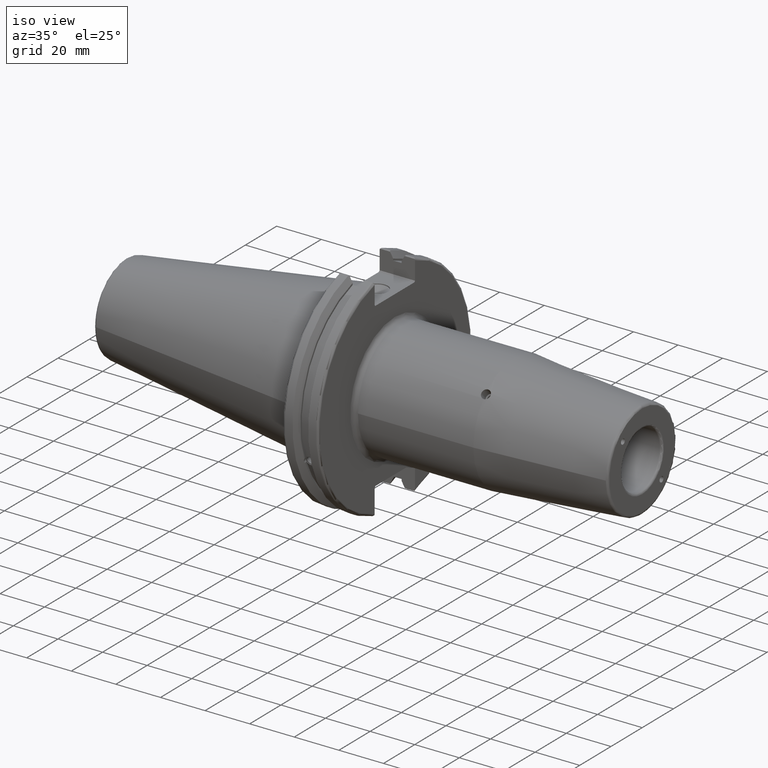
[diagram: clean part render]
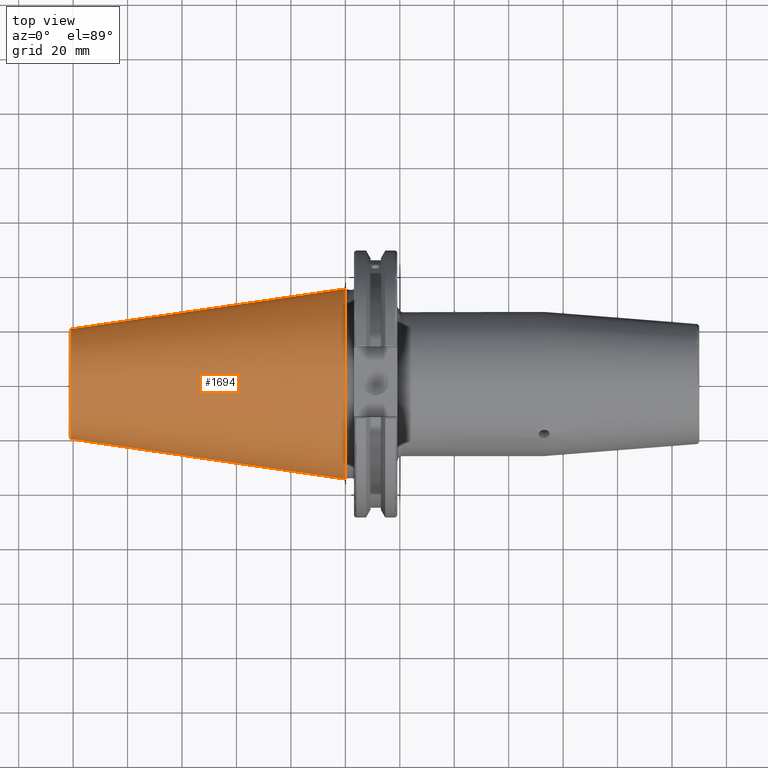
[diagram: tour spotlight — one face highlighted and labeled with its STEP entity id]
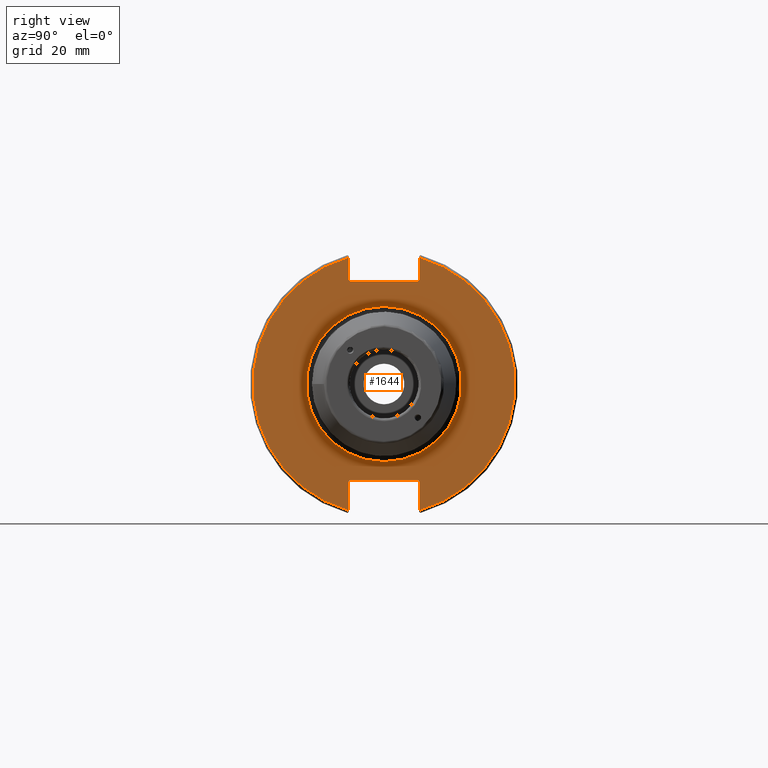
[diagram: tour spotlight — one face highlighted and labeled with its STEP entity id]
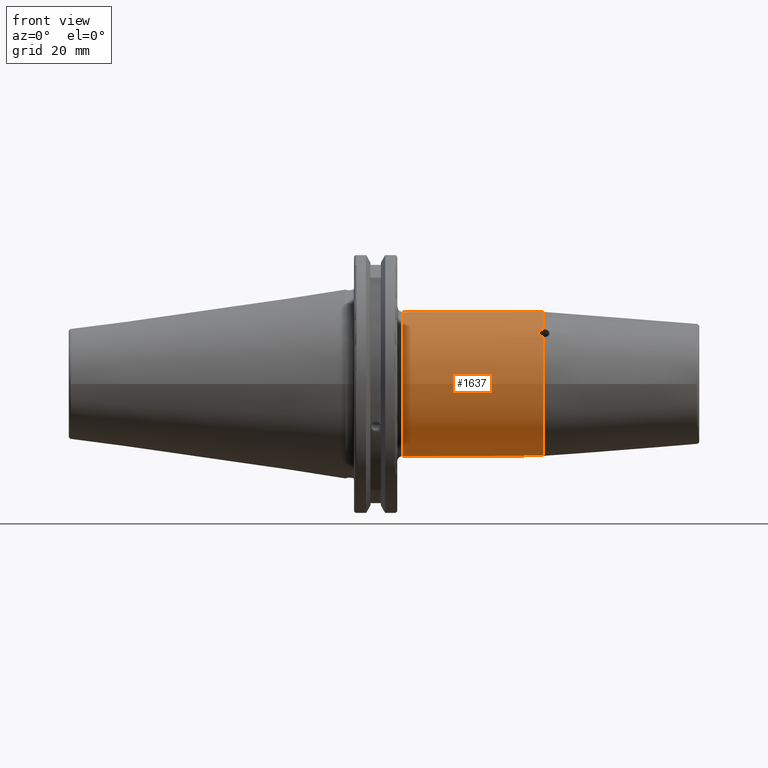
[diagram: tour spotlight — one face highlighted and labeled with its STEP entity id]
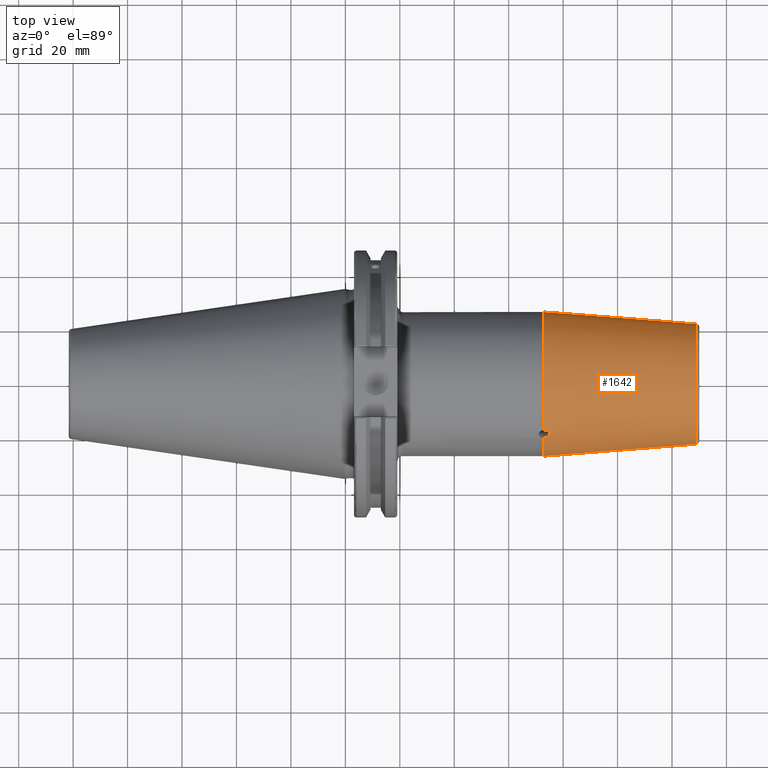
[diagram: tour spotlight — one face highlighted and labeled with its STEP entity id]
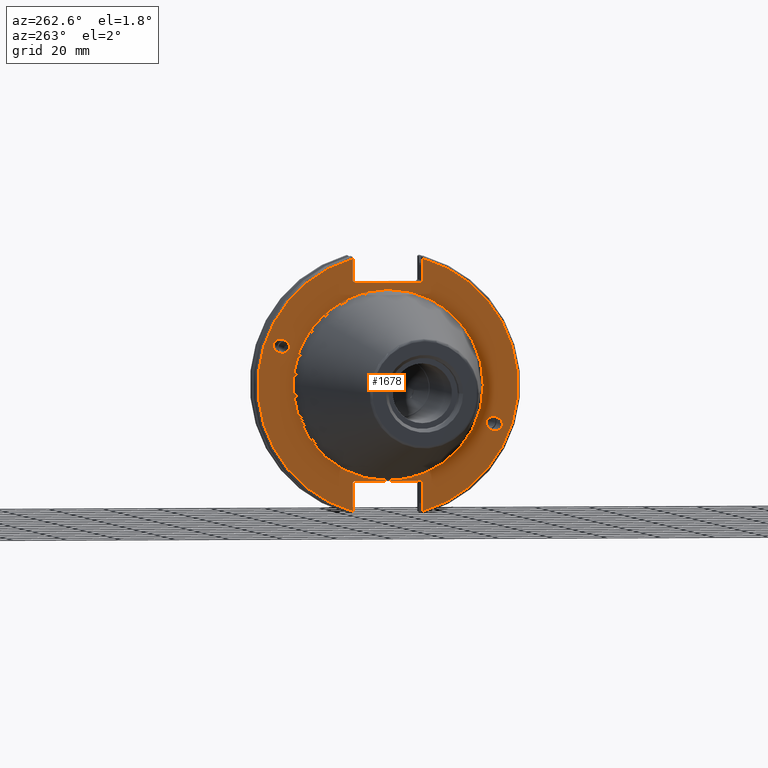
[diagram: tour spotlight — one face highlighted and labeled with its STEP entity id]
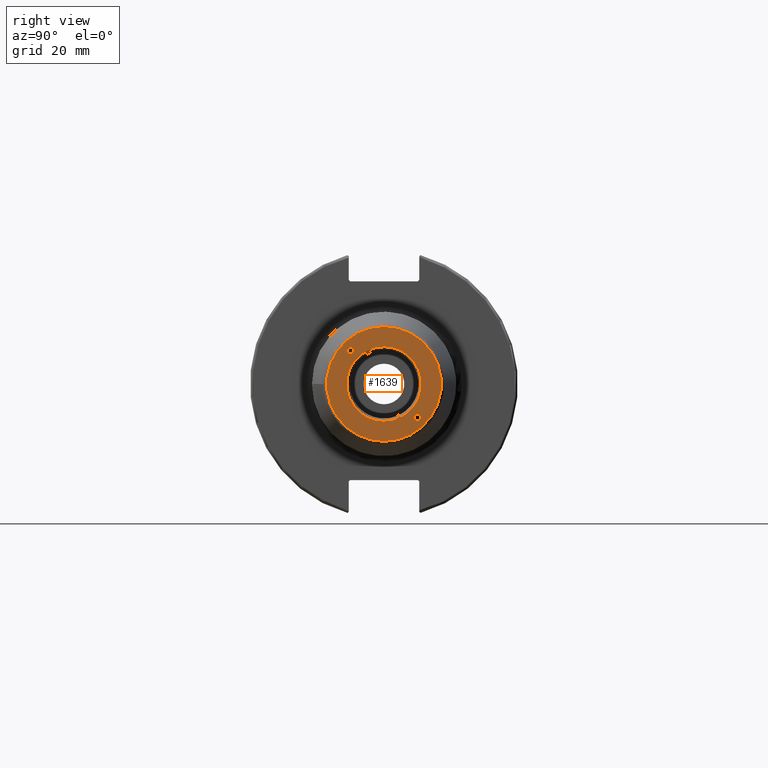
[diagram: tour spotlight — one face highlighted and labeled with its STEP entity id]
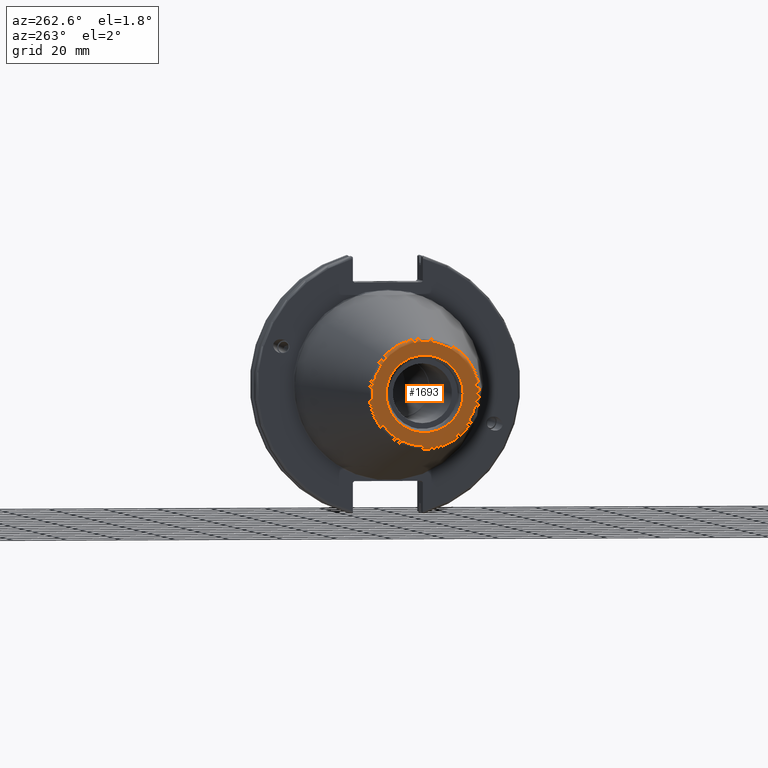
[diagram: tour spotlight — one face highlighted and labeled with its STEP entity id]
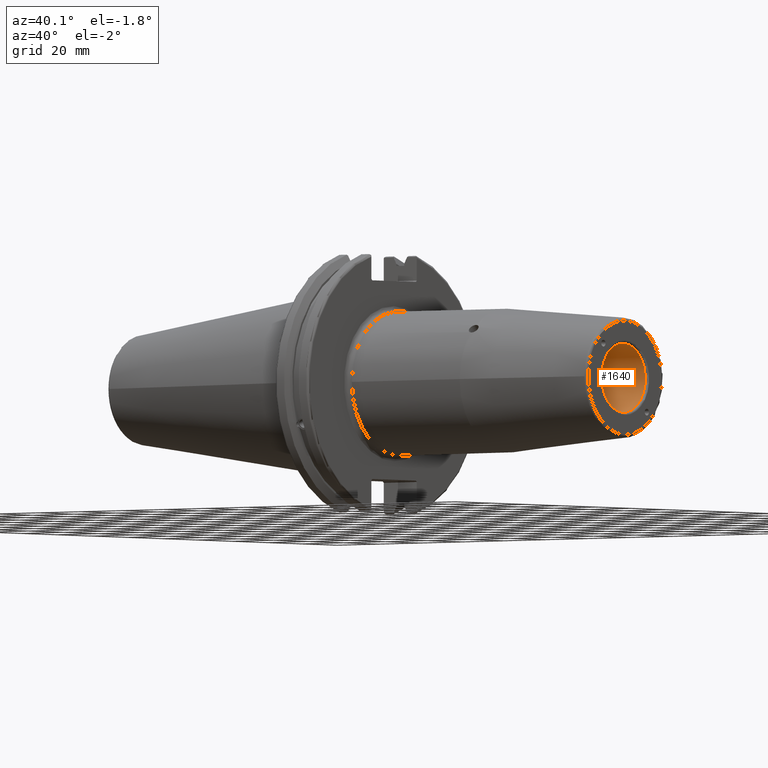
[diagram: tour spotlight — one face highlighted and labeled with its STEP entity id]
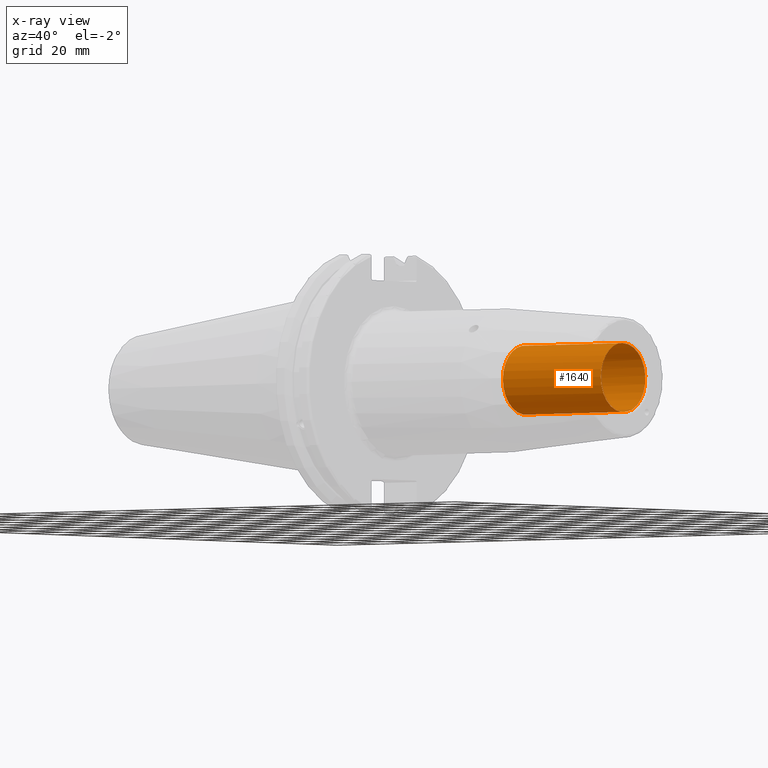
[diagram: x-ray of the same camera — body ghosted, this tour face saturated]
A machine part: a face-by-face anatomy tour. The part has 93 B-rep faces; the first image is the clean iso view, then the 8 largest visible faces are spotlighted one at a time (largest first), each with its STEP entity span.

Face 1 — top view, entity #1694. In plain terms, the highlighted conical surface has half-angle 8.297 deg.
Definition (entity closure, byte-faithful):
#110=CONICAL_SURFACE('',#1882,27.5166666666666,0.14481249823894);
#179=CIRCLE('',#1876,20.233121911427);
#180=CIRCLE('',#1877,20.233121911427);
#184=CIRCLE('',#1883,34.925);
#260=FACE_OUTER_BOUND('',#375,.T.);
#375=EDGE_LOOP('',(#1466,#1467,#1468,#1469,#1470));
#540=LINE('',#3496,#641);
#641=VECTOR('',#2282,27.5166666666666);
#821=VERTEX_POINT('',#3483);
#822=VERTEX_POINT('',#3484);
#825=VERTEX_POINT('',#3494);
#1051=EDGE_CURVE('',#821,#822,#179,.T.);
#1052=EDGE_CURVE('',#822,#821,#180,.T.);
#1056=EDGE_CURVE('',#825,#825,#184,.T.);
#1057=EDGE_CURVE('',#825,#822,#540,.T.);
#1466=ORIENTED_EDGE('',*,*,#1056,.F.);
#1467=ORIENTED_EDGE('',*,*,#1057,.T.);
#1468=ORIENTED_EDGE('',*,*,#1051,.F.);
#1469=ORIENTED_EDGE('',*,*,#1052,.F.);
#1470=ORIENTED_EDGE('',*,*,#1057,.F.);
#1694=ADVANCED_FACE('',(#260),#110,.T.);
#1876=AXIS2_PLACEMENT_3D('',#3485,#2266,#2267);
#1877=AXIS2_PLACEMENT_3D('',#3486,#2268,#2269);
#1882=AXIS2_PLACEMENT_3D('',#3493,#2278,#2279);
#1883=AXIS2_PLACEMENT_3D('',#3495,#2280,#2281);
#2266=DIRECTION('center_axis',(-1.,0.,0.));
#2267=DIRECTION('ref_axis',(0.,-1.,3.06161699786838E-17));
#2268=DIRECTION('center_axis',(-1.,0.,0.));
#2269=DIRECTION('ref_axis',(0.,-1.,3.06161699786838E-17));
#2278=DIRECTION('center_axis',(1.,0.,0.));
#2279=DIRECTION('ref_axis',(0.,1.,0.));
#2280=DIRECTION('center_axis',(1.,0.,0.));
#2281=DIRECTION('ref_axis',(0.,0.,-1.));
#2282=DIRECTION('',(-0.989532981063281,0.144306893071729,1.76724974695192E-17));
#3483=CARTESIAN_POINT('',(-100.744306893072,-2.47784279855872E-15,20.233121911427));
#3484=CARTESIAN_POINT('',(-100.744306893072,-20.233121911427,-2.47784279855872E-15));
#3485=CARTESIAN_POINT('Origin',(-100.744306893072,0.,-3.09730349819841E-15));
#3486=CARTESIAN_POINT('Origin',(-100.744306893072,0.,-3.09730349819841E-15));
#3493=CARTESIAN_POINT('Origin',(-50.8,0.,0.));
#3494=CARTESIAN_POINT('',(-8.88178419700125E-15,-34.925,-4.27707894602213E-15));
#3495=CARTESIAN_POINT('Origin',(0.,0.,0.));
#3496=CARTESIAN_POINT('',(-50.8,-27.5166666666666,-3.3698197756538E-15));

Face 2 — right view, entity #1644. In plain terms, the highlighted planar face has unit normal (1, 0, 0).
Definition (entity closure, byte-faithful):
#34=FACE_BOUND('',#307,.T.);
#56=PLANE('',#1780);
#133=CIRCLE('',#1779,28.5);
#134=CIRCLE('',#1781,48.2125);
#135=CIRCLE('',#1782,48.2125);
#210=FACE_OUTER_BOUND('',#306,.T.);
#306=EDGE_LOOP('',(#1178,#1179,#1180,#1181,#1182,#1183,#1184,#1185,#1186,
#1187,#1188,#1189));
#307=EDGE_LOOP('',(#1190));
#471=LINE('',#2679,#572);
#472=LINE('',#2681,#573);
#473=LINE('',#2683,#574);
#474=LINE('',#2685,#575);
#475=LINE('',#2687,#576);
#476=LINE('',#2691,#577);
#477=LINE('',#2693,#578);
#478=LINE('',#2695,#579);
#479=LINE('',#2697,#580);
#480=LINE('',#2698,#581);
#572=VECTOR('',#2009,10.);
#573=VECTOR('',#2010,10.);
#574=VECTOR('',#2011,10.);
#575=VECTOR('',#2012,10.);
#576=VECTOR('',#2013,10.);
#577=VECTOR('',#2016,10.);
#578=VECTOR('',#2017,10.);
#579=VECTOR('',#2018,10.);
#580=VECTOR('',#2019,10.);
#581=VECTOR('',#2020,10.);
#696=VERTEX_POINT('',#2671);
#697=VERTEX_POINT('',#2675);
#698=VERTEX_POINT('',#2676);
#699=VERTEX_POINT('',#2678);
#700=VERTEX_POINT('',#2680);
#701=VERTEX_POINT('',#2682);
#702=VERTEX_POINT('',#2684);
#703=VERTEX_POINT('',#2686);
#704=VERTEX_POINT('',#2688);
#705=VERTEX_POINT('',#2690);
#706=VERTEX_POINT('',#2692);
#707=VERTEX_POINT('',#2694);
#708=VERTEX_POINT('',#2696);
#882=EDGE_CURVE('',#696,#696,#133,.T.);
#883=EDGE_CURVE('',#697,#698,#134,.T.);
#884=EDGE_CURVE('',#697,#699,#471,.T.);
#885=EDGE_CURVE('',#700,#699,#472,.T.);
#886=EDGE_CURVE('',#700,#701,#473,.T.);
#887=EDGE_CURVE('',#702,#701,#474,.T.);
#888=EDGE_CURVE('',#702,#703,#475,.T.);
#889=EDGE_CURVE('',#704,#703,#135,.T.);
#890=EDGE_CURVE('',#704,#705,#476,.T.);
#891=EDGE_CURVE('',#706,#705,#477,.T.);
#892=EDGE_CURVE('',#706,#707,#478,.T.);
#893=EDGE_CURVE('',#708,#707,#479,.T.);
#894=EDGE_CURVE('',#708,#698,#480,.T.);
#1178=ORIENTED_EDGE('',*,*,#883,.F.);
#1179=ORIENTED_EDGE('',*,*,#884,.T.);
#1180=ORIENTED_EDGE('',*,*,#885,.F.);
#1181=ORIENTED_EDGE('',*,*,#886,.T.);
#1182=ORIENTED_EDGE('',*,*,#887,.F.);
#1183=ORIENTED_EDGE('',*,*,#888,.T.);
#1184=ORIENTED_EDGE('',*,*,#889,.F.);
#1185=ORIENTED_EDGE('',*,*,#890,.T.);
#1186=ORIENTED_EDGE('',*,*,#891,.F.);
#1187=ORIENTED_EDGE('',*,*,#892,.T.);
#1188=ORIENTED_EDGE('',*,*,#893,.F.);
#1189=ORIENTED_EDGE('',*,*,#894,.T.);
#1190=ORIENTED_EDGE('',*,*,#882,.F.);
#1644=ADVANCED_FACE('',(#210,#34),#56,.T.);
#1779=AXIS2_PLACEMENT_3D('',#2673,#2003,#2004);
#1780=AXIS2_PLACEMENT_3D('',#2674,#2005,#2006);
#1781=AXIS2_PLACEMENT_3D('',#2677,#2007,#2008);
#1782=AXIS2_PLACEMENT_3D('',#2689,#2014,#2015);
#2003=DIRECTION('center_axis',(1.,0.,0.));
#2004=DIRECTION('ref_axis',(0.,-1.,-1.22464679914735E-16));
#2005=DIRECTION('center_axis',(1.,0.,0.));
#2006=DIRECTION('ref_axis',(0.,0.,-1.));
#2007=DIRECTION('center_axis',(-1.,0.,0.));
#2008=DIRECTION('ref_axis',(0.,1.,-6.12323399573677E-17));
#2009=DIRECTION('',(0.,0.,-1.));
#2010=DIRECTION('',(0.,0.707106781186549,0.707106781186546));
#2011=DIRECTION('',(0.,-1.,0.));
#2012=DIRECTION('',(0.,0.707106781186549,-0.707106781186546));
#2013=DIRECTION('',(0.,0.,1.));
#2014=DIRECTION('center_axis',(-1.,0.,0.));
#2015=DIRECTION('ref_axis',(0.,-1.,1.60812264967664E-16));
#2016=DIRECTION('',(0.,0.,1.));
#2017=DIRECTION('',(0.,-0.707106781186549,-0.707106781186546));
#2018=DIRECTION('',(0.,1.,0.));
#2019=DIRECTION('',(0.,-0.707106781186549,0.707106781186546));
#2020=DIRECTION('',(0.,0.,-1.));
#2671=CARTESIAN_POINT('',(19.05,-3.49024337756996E-15,-28.5));
#2673=CARTESIAN_POINT('Origin',(19.05,0.,0.));
#2674=CARTESIAN_POINT('Origin',(19.05,0.,0.));
#2675=CARTESIAN_POINT('',(19.05,12.95,46.4407434937254));
#2676=CARTESIAN_POINT('',(19.05,12.95,-46.4407434937254));
#2677=CARTESIAN_POINT('Origin',(19.05,0.,0.));
#2678=CARTESIAN_POINT('',(19.05,12.95,38.219));
#2679=CARTESIAN_POINT('',(19.05,12.95,18.8595));
#2680=CARTESIAN_POINT('',(19.05,12.45,37.719));
#2681=CARTESIAN_POINT('',(19.05,0.0327499999999836,25.30175));
#2682=CARTESIAN_POINT('',(19.05,-12.45,37.719));
#2683=CARTESIAN_POINT('',(19.05,0.,37.719));
#2684=CARTESIAN_POINT('',(19.05,-12.95,38.219));
#2685=CARTESIAN_POINT('',(19.05,-0.0327499999999817,25.30175));
#2686=CARTESIAN_POINT('',(19.05,-12.95,46.4407434937254));
#2687=CARTESIAN_POINT('',(19.05,-12.95,18.8595));
#2688=CARTESIAN_POINT('',(19.05,-12.95,-46.4407434937254));
#2689=CARTESIAN_POINT('Origin',(19.05,0.,0.));
#2690=CARTESIAN_POINT('',(19.05,-12.95,-35.806));
#2691=CARTESIAN_POINT('',(19.05,-12.95,-17.653));
#2692=CARTESIAN_POINT('',(19.05,-12.45,-35.306));
#2693=CARTESIAN_POINT('',(19.05,-0.635999999999989,-23.492));
#2694=CARTESIAN_POINT('',(19.05,12.45,-35.306));
#2695=CARTESIAN_POINT('',(19.05,-3.33066907387547E-15,-35.306));
#2696=CARTESIAN_POINT('',(19.05,12.95,-35.806));
#2697=CARTESIAN_POINT('',(19.05,0.635999999999982,-23.492));
#2698=CARTESIAN_POINT('',(19.05,12.95,-17.653));

Face 3 — front view, entity #1637. In plain terms, the highlighted cylindrical surface (bore or boss wall) has radius 26.5 mm, axis along (1, 0, 0).
Definition (entity closure, byte-faithful):
#119=CIRCLE('',#1759,26.5);
#120=CIRCLE('',#1760,26.5);
#121=CIRCLE('',#1761,26.5);
#122=CIRCLE('',#1762,26.5);
#203=FACE_OUTER_BOUND('',#296,.T.);
#296=EDGE_LOOP('',(#1139,#1140,#1141,#1142,#1143,#1144,#1145));
#419=B_SPLINE_CURVE_WITH_KNOTS('',3,(#2603,#2604,#2605,#2606,#2607,#2608,
#2609,#2610,#2611,#2612,#2613,#2614,#2615,#2616,#2617,#2618,#2619,#2620),
 .UNSPECIFIED.,.F.,.F.,(4,2,2,2,2,2,2,2,4),(0.620510854365993,0.678312840399009,
0.753680970618964,0.829049017943773,0.904417065268582,0.979785112593391,
1.0551531599182,1.13052129013816,1.18832327617117),.UNSPECIFIED.);
#468=LINE('',#2642,#569);
#569=VECTOR('',#1962,26.5);
#682=VERTEX_POINT('',#2587);
#684=VERTEX_POINT('',#2602);
#686=VERTEX_POINT('',#2639);
#687=VERTEX_POINT('',#2641);
#688=VERTEX_POINT('',#2643);
#860=EDGE_CURVE('',#684,#682,#419,.T.);
#865=EDGE_CURVE('',#686,#682,#119,.T.);
#866=EDGE_CURVE('',#686,#687,#468,.T.);
#867=EDGE_CURVE('',#688,#687,#120,.T.);
#868=EDGE_CURVE('',#687,#688,#121,.T.);
#869=EDGE_CURVE('',#684,#686,#122,.T.);
#1139=ORIENTED_EDGE('',*,*,#860,.T.);
#1140=ORIENTED_EDGE('',*,*,#865,.F.);
#1141=ORIENTED_EDGE('',*,*,#866,.T.);
#1142=ORIENTED_EDGE('',*,*,#867,.F.);
#1143=ORIENTED_EDGE('',*,*,#868,.F.);
#1144=ORIENTED_EDGE('',*,*,#866,.F.);
#1145=ORIENTED_EDGE('',*,*,#869,.F.);
#1603=CYLINDRICAL_SURFACE('',#1758,26.5);
#1637=ADVANCED_FACE('',(#203),#1603,.T.);
#1758=AXIS2_PLACEMENT_3D('',#2638,#1958,#1959);
#1759=AXIS2_PLACEMENT_3D('',#2640,#1960,#1961);
#1760=AXIS2_PLACEMENT_3D('',#2644,#1963,#1964);
#1761=AXIS2_PLACEMENT_3D('',#2645,#1965,#1966);
#1762=AXIS2_PLACEMENT_3D('',#2646,#1967,#1968);
#1958=DIRECTION('center_axis',(1.,0.,0.));
#1959=DIRECTION('ref_axis',(0.,1.,0.));
#1960=DIRECTION('center_axis',(1.,0.,0.));
#1961=DIRECTION('ref_axis',(0.,0.,-1.));
#1962=DIRECTION('',(-1.,0.,0.));
#1963=DIRECTION('center_axis',(-1.,0.,0.));
#1964=DIRECTION('ref_axis',(0.,-1.,-1.22464679914735E-16));
#1965=DIRECTION('center_axis',(-1.,0.,0.));
#1966=DIRECTION('ref_axis',(0.,-1.,-1.22464679914735E-16));
#1967=DIRECTION('center_axis',(1.,0.,0.));
#1968=DIRECTION('ref_axis',(0.,0.,-1.));
#2587=CARTESIAN_POINT('',(72.8220786872138,-17.276704082379,20.0939168916841));
#2602=CARTESIAN_POINT('',(72.8220786872138,-20.0939168916841,17.276704082379));
#2603=CARTESIAN_POINT('Ctrl Pts',(72.8220786872138,-20.0939168916841,17.276704082379));
#2604=CARTESIAN_POINT('Ctrl Pts',(72.6249962546233,-20.0824084423519,17.2900891483807));
#2605=CARTESIAN_POINT('Ctrl Pts',(72.4234450740899,-20.0507328415156,17.3269809865139));
#2606=CARTESIAN_POINT('Ctrl Pts',(71.9881353838427,-19.932121053961,17.4634194575635));
#2607=CARTESIAN_POINT('Ctrl Pts',(71.7633041163207,-19.8304430157723,17.5793951070025));
#2608=CARTESIAN_POINT('Ctrl Pts',(71.4082689541795,-19.5928119172379,17.8438595498876));
#2609=CARTESIAN_POINT('Ctrl Pts',(71.2543644049249,-19.4409720544505,18.0099792374124));
#2610=CARTESIAN_POINT('Ctrl Pts',(71.0502272876838,-19.1026276303626,18.3684611268594));
#2611=CARTESIAN_POINT('Ctrl Pts',(71.,-18.915973892604,18.560685510283));
#2612=CARTESIAN_POINT('Ctrl Pts',(71.,-18.560685510283,18.915973892604));
#2613=CARTESIAN_POINT('Ctrl Pts',(71.0502272876838,-18.3684611268594,19.1026276303626));
#2614=CARTESIAN_POINT('Ctrl Pts',(71.2543644049249,-18.0099792374124,19.4409720544505));
#2615=CARTESIAN_POINT('Ctrl Pts',(71.4082689541795,-17.8438595498876,19.5928119172379));
#2616=CARTESIAN_POINT('Ctrl Pts',(71.7633041163207,-17.5793951070025,19.8304430157723));
#2617=CARTESIAN_POINT('Ctrl Pts',(71.9881353838427,-17.4634194575635,19.932121053961));
#2618=CARTESIAN_POINT('Ctrl Pts',(72.4234450740899,-17.3269809865139,20.0507328415156));
#2619=CARTESIAN_POINT('Ctrl Pts',(72.6249962546233,-17.2900891483807,20.0824084423519));
#2620=CARTESIAN_POINT('Ctrl Pts',(72.8220786872138,-17.276704082379,20.0939168916841));
#2638=CARTESIAN_POINT('Origin',(45.9360393436069,0.,0.));
#2639=CARTESIAN_POINT('',(72.8220786872138,-26.5,-3.24531401774049E-15));
#2640=CARTESIAN_POINT('Origin',(72.8220786872138,0.,0.));
#2641=CARTESIAN_POINT('',(21.05,-26.5,-3.24531401774049E-15));
#2642=CARTESIAN_POINT('',(45.9360393436069,-26.5,-3.24531401774049E-15));
#2643=CARTESIAN_POINT('',(21.05,-3.24531401774049E-15,-26.5));
#2644=CARTESIAN_POINT('Origin',(21.05,0.,0.));
#2645=CARTESIAN_POINT('Origin',(21.05,0.,0.));
#2646=CARTESIAN_POINT('Origin',(72.8220786872138,0.,0.));

Face 4 — top view, entity #1642. In plain terms, the highlighted conical surface has half-angle 4.5 deg.
Definition (entity closure, byte-faithful):
#103=CONICAL_SURFACE('',#1776,24.25,0.0785398163397448);
#119=CIRCLE('',#1759,26.5);
#122=CIRCLE('',#1762,26.5);
#130=CIRCLE('',#1774,22.0725268420749);
#131=CIRCLE('',#1775,22.0725268420749);
#208=FACE_OUTER_BOUND('',#304,.T.);
#304=EDGE_LOOP('',(#1165,#1166,#1167,#1168,#1169,#1170,#1171,#1172));
#418=B_SPLINE_CURVE_WITH_KNOTS('',3,(#2589,#2590,#2591,#2592,#2593,#2594,
#2595,#2596,#2597,#2598,#2599,#2600,#2601),.UNSPECIFIED.,.F.,.F.,(4,3,2,
2,2,4),(-0.0187866150525106,0.,0.0751395532383938,0.150279106476788,0.2253197963992,
0.300360486321612),.UNSPECIFIED.);
#420=B_SPLINE_CURVE_WITH_KNOTS('',3,(#2621,#2622,#2623,#2624,#2625,#2626,
#2627,#2628,#2629,#2630,#2631,#2632),.UNSPECIFIED.,.F.,.F.,(4,2,2,2,2,4),
(0.300360486321612,0.375401176244025,0.450441866166437,0.52558141940483,
0.600720972643224,0.619507587749332),.UNSPECIFIED.);
#470=LINE('',#2669,#571);
#571=VECTOR('',#1998,24.25);
#682=VERTEX_POINT('',#2587);
#683=VERTEX_POINT('',#2588);
#684=VERTEX_POINT('',#2602);
#686=VERTEX_POINT('',#2639);
#694=VERTEX_POINT('',#2663);
#695=VERTEX_POINT('',#2665);
#859=EDGE_CURVE('',#682,#683,#418,.T.);
#861=EDGE_CURVE('',#683,#684,#420,.T.);
#865=EDGE_CURVE('',#686,#682,#119,.T.);
#869=EDGE_CURVE('',#684,#686,#122,.T.);
#878=EDGE_CURVE('',#694,#695,#130,.T.);
#879=EDGE_CURVE('',#695,#694,#131,.T.);
#880=EDGE_CURVE('',#695,#686,#470,.T.);
#1165=ORIENTED_EDGE('',*,*,#879,.F.);
#1166=ORIENTED_EDGE('',*,*,#880,.T.);
#1167=ORIENTED_EDGE('',*,*,#865,.T.);
#1168=ORIENTED_EDGE('',*,*,#859,.T.);
#1169=ORIENTED_EDGE('',*,*,#861,.T.);
#1170=ORIENTED_EDGE('',*,*,#869,.T.);
#1171=ORIENTED_EDGE('',*,*,#880,.F.);
#1172=ORIENTED_EDGE('',*,*,#878,.F.);
#1642=ADVANCED_FACE('',(#208),#103,.T.);
#1759=AXIS2_PLACEMENT_3D('',#2640,#1960,#1961);
#1762=AXIS2_PLACEMENT_3D('',#2646,#1967,#1968);
#1774=AXIS2_PLACEMENT_3D('',#2666,#1992,#1993);
#1775=AXIS2_PLACEMENT_3D('',#2667,#1994,#1995);
#1776=AXIS2_PLACEMENT_3D('',#2668,#1996,#1997);
#1960=DIRECTION('center_axis',(1.,0.,0.));
#1961=DIRECTION('ref_axis',(0.,0.,-1.));
#1967=DIRECTION('center_axis',(1.,0.,0.));
#1968=DIRECTION('ref_axis',(0.,0.,-1.));
#1992=DIRECTION('center_axis',(1.,0.,0.));
#1993=DIRECTION('ref_axis',(0.,-1.,3.06161699786838E-17));
#1994=DIRECTION('center_axis',(1.,0.,0.));
#1995=DIRECTION('ref_axis',(0.,-1.,3.06161699786838E-17));
#1996=DIRECTION('center_axis',(-1.,0.,0.));
#1997=DIRECTION('ref_axis',(0.,1.,0.));
#1998=DIRECTION('',(-0.996917333733128,-0.0784590957278449,-9.6084680447101E-18));
#2587=CARTESIAN_POINT('',(72.8220786872138,-17.276704082379,20.0939168916841));
#2588=CARTESIAN_POINT('',(75.,-18.6171272683694,18.6171272683694));
#2589=CARTESIAN_POINT('Ctrl Pts',(72.8220786872138,-17.276704082379,20.0939168916841));
#2590=CARTESIAN_POINT('Ctrl Pts',(72.8859881673031,-17.26879691413,20.094082140655));
#2591=CARTESIAN_POINT('Ctrl Pts',(72.9494567761213,-17.2633090919304,20.0922109640794));
#2592=CARTESIAN_POINT('Ctrl Pts',(73.0118857834147,-17.2601071527665,20.088484329931));
#2593=CARTESIAN_POINT('Ctrl Pts',(73.2615788603224,-17.247300573316,20.0735791634489));
#2594=CARTESIAN_POINT('Ctrl Pts',(73.5280233931115,-17.2714995908098,20.025336104931));
#2595=CARTESIAN_POINT('Ctrl Pts',(74.0181856226338,-17.3995901667453,19.8628865203261));
#2596=CARTESIAN_POINT('Ctrl Pts',(74.2418889924643,-17.5033461014276,19.7485298901347));
#2597=CARTESIAN_POINT('Ctrl Pts',(74.5947523603455,-17.7481281815369,19.4912939121413));
#2598=CARTESIAN_POINT('Ctrl Pts',(74.7475795784766,-17.9054015395548,19.3312750294258));
#2599=CARTESIAN_POINT('Ctrl Pts',(74.9502032229971,-18.2515372299817,18.982699833052));
#2600=CARTESIAN_POINT('Ctrl Pts',(75.,-18.4402546660059,18.7939998707329));
#2601=CARTESIAN_POINT('Ctrl Pts',(75.,-18.6171272683694,18.6171272683694));
#2602=CARTESIAN_POINT('',(72.8220786872138,-20.0939168916841,17.276704082379));
#2621=CARTESIAN_POINT('Ctrl Pts',(75.,-18.6171272683694,18.6171272683694));
#2622=CARTESIAN_POINT('Ctrl Pts',(75.,-18.7939998707329,18.4402546660059));
#2623=CARTESIAN_POINT('Ctrl Pts',(74.9502032229971,-18.982699833052,18.2515372299817));
#2624=CARTESIAN_POINT('Ctrl Pts',(74.7475795784766,-19.3312750294257,17.9054015395548));
#2625=CARTESIAN_POINT('Ctrl Pts',(74.5947523603455,-19.4912939121413,17.7481281815369));
#2626=CARTESIAN_POINT('Ctrl Pts',(74.2418889924643,-19.7485298901347,17.5033461014276));
#2627=CARTESIAN_POINT('Ctrl Pts',(74.0181856226338,-19.8628865203261,17.3995901667453));
#2628=CARTESIAN_POINT('Ctrl Pts',(73.5280233931115,-20.025336104931,17.2714995908099));
#2629=CARTESIAN_POINT('Ctrl Pts',(73.2615788603224,-20.0735791634489,17.247300573316));
#2630=CARTESIAN_POINT('Ctrl Pts',(72.9494567759432,-20.09221096409,17.2633090919395));
#2631=CARTESIAN_POINT('Ctrl Pts',(72.8859881671823,-20.0940821406547,17.2687969141449));
#2632=CARTESIAN_POINT('Ctrl Pts',(72.8220786872138,-20.0939168916841,17.276704082379));
#2639=CARTESIAN_POINT('',(72.8220786872138,-26.5,-3.24531401774049E-15));
#2640=CARTESIAN_POINT('Origin',(72.8220786872138,0.,0.));
#2646=CARTESIAN_POINT('Origin',(72.8220786872138,0.,0.));
#2663=CARTESIAN_POINT('',(129.078459095728,-2.70310493462411E-15,22.0725268420749));
#2665=CARTESIAN_POINT('',(129.078459095728,-22.0725268420749,-2.70310493462411E-15));
#2666=CARTESIAN_POINT('Origin',(129.078459095728,0.,-3.37888116828014E-15));
#2667=CARTESIAN_POINT('Origin',(129.078459095728,0.,-3.37888116828014E-15));
#2668=CARTESIAN_POINT('Origin',(101.411039343607,0.,0.));
#2669=CARTESIAN_POINT('',(101.411039343607,-24.25,-2.96976848793233E-15));

Face 5 — auxiliary view, entity #1678. In plain terms, the highlighted planar face has unit normal (-1, 0, 0).
Definition (entity closure, byte-faithful):
#49=FACE_BOUND('',#356,.T.);
#50=FACE_BOUND('',#357,.T.);
#51=FACE_BOUND('',#358,.T.);
#67=PLANE('',#1853);
#169=CIRCLE('',#1851,35.125);
#171=CIRCLE('',#1854,48.2125);
#172=CIRCLE('',#1855,48.2125);
#244=FACE_OUTER_BOUND('',#355,.T.);
#355=EDGE_LOOP('',(#1359,#1360,#1361,#1362,#1363,#1364,#1365,#1366,#1367,
#1368,#1369,#1370));
#356=EDGE_LOOP('',(#1371));
#357=EDGE_LOOP('',(#1372));
#358=EDGE_LOOP('',(#1373));
#513=LINE('',#3270,#614);
#514=LINE('',#3272,#615);
#515=LINE('',#3274,#616);
#516=LINE('',#3276,#617);
#517=LINE('',#3278,#618);
#518=LINE('',#3282,#619);
#519=LINE('',#3284,#620);
#520=LINE('',#3286,#621);
#521=LINE('',#3288,#622);
#522=LINE('',#3289,#623);
#614=VECTOR('',#2197,10.);
#615=VECTOR('',#2198,10.);
#616=VECTOR('',#2199,10.);
#617=VECTOR('',#2200,10.);
#618=VECTOR('',#2201,10.);
#619=VECTOR('',#2204,10.);
#620=VECTOR('',#2205,10.);
#621=VECTOR('',#2206,10.);
#622=VECTOR('',#2207,10.);
#623=VECTOR('',#2208,10.);
#663=ELLIPSE('',#1809,3.05193647190364,2.5);
#664=ELLIPSE('',#1843,3.05193647190364,2.5);
#739=VERTEX_POINT('',#2987);
#777=VERTEX_POINT('',#3246);
#782=VERTEX_POINT('',#3261);
#783=VERTEX_POINT('',#3266);
#784=VERTEX_POINT('',#3267);
#785=VERTEX_POINT('',#3269);
#786=VERTEX_POINT('',#3271);
#787=VERTEX_POINT('',#3273);
#788=VERTEX_POINT('',#3275);
#789=VERTEX_POINT('',#3277);
#790=VERTEX_POINT('',#3279);
#791=VERTEX_POINT('',#3281);
#792=VERTEX_POINT('',#3283);
#793=VERTEX_POINT('',#3285);
#794=VERTEX_POINT('',#3287);
#934=EDGE_CURVE('',#739,#739,#663,.T.);
#985=EDGE_CURVE('',#777,#777,#664,.T.);
#992=EDGE_CURVE('',#782,#782,#169,.T.);
#994=EDGE_CURVE('',#783,#784,#171,.T.);
#995=EDGE_CURVE('',#783,#785,#513,.T.);
#996=EDGE_CURVE('',#786,#785,#514,.T.);
#997=EDGE_CURVE('',#786,#787,#515,.T.);
#998=EDGE_CURVE('',#788,#787,#516,.T.);
#999=EDGE_CURVE('',#788,#789,#517,.T.);
#1000=EDGE_CURVE('',#790,#789,#172,.T.);
#1001=EDGE_CURVE('',#790,#791,#518,.T.);
#1002=EDGE_CURVE('',#792,#791,#519,.T.);
#1003=EDGE_CURVE('',#792,#793,#520,.T.);
#1004=EDGE_CURVE('',#794,#793,#521,.T.);
#1005=EDGE_CURVE('',#794,#784,#522,.T.);
#1359=ORIENTED_EDGE('',*,*,#994,.F.);
#1360=ORIENTED_EDGE('',*,*,#995,.T.);
#1361=ORIENTED_EDGE('',*,*,#996,.F.);
#1362=ORIENTED_EDGE('',*,*,#997,.T.);
#1363=ORIENTED_EDGE('',*,*,#998,.F.);
#1364=ORIENTED_EDGE('',*,*,#999,.T.);
#1365=ORIENTED_EDGE('',*,*,#1000,.F.);
#1366=ORIENTED_EDGE('',*,*,#1001,.T.);
#1367=ORIENTED_EDGE('',*,*,#1002,.F.);
#1368=ORIENTED_EDGE('',*,*,#1003,.T.);
#1369=ORIENTED_EDGE('',*,*,#1004,.F.);
#1370=ORIENTED_EDGE('',*,*,#1005,.T.);
#1371=ORIENTED_EDGE('',*,*,#934,.T.);
#1372=ORIENTED_EDGE('',*,*,#985,.T.);
#1373=ORIENTED_EDGE('',*,*,#992,.F.);
#1678=ADVANCED_FACE('',(#244,#49,#50,#51),#67,.T.);
#1809=AXIS2_PLACEMENT_3D('',#2989,#2087,#2088);
#1843=AXIS2_PLACEMENT_3D('',#3248,#2171,#2172);
#1851=AXIS2_PLACEMENT_3D('',#3263,#2189,#2190);
#1853=AXIS2_PLACEMENT_3D('',#3265,#2193,#2194);
#1854=AXIS2_PLACEMENT_3D('',#3268,#2195,#2196);
#1855=AXIS2_PLACEMENT_3D('',#3280,#2202,#2203);
#2087=DIRECTION('center_axis',(1.,0.,0.));
#2088=DIRECTION('ref_axis',(0.,-0.939692620785908,-0.342020143325668));
#2171=DIRECTION('center_axis',(1.,0.,0.));
#2172=DIRECTION('ref_axis',(0.,0.939692620785908,0.342020143325669));
#2189=DIRECTION('center_axis',(-1.,0.,0.));
#2190=DIRECTION('ref_axis',(0.,-1.,1.83697019872103E-16));
#2193=DIRECTION('center_axis',(-1.,0.,0.));
#2194=DIRECTION('ref_axis',(0.,0.,1.));
#2195=DIRECTION('center_axis',(1.,0.,0.));
#2196=DIRECTION('ref_axis',(0.,-1.,1.60812264967664E-16));
#2197=DIRECTION('',(0.,0.,-1.));
#2198=DIRECTION('',(0.,-0.707106781186549,0.707106781186546));
#2199=DIRECTION('',(0.,1.,0.));
#2200=DIRECTION('',(0.,-0.707106781186549,-0.707106781186546));
#2201=DIRECTION('',(0.,0.,1.));
#2202=DIRECTION('center_axis',(1.,0.,0.));
#2203=DIRECTION('ref_axis',(0.,1.,-6.12323399573677E-17));
#2204=DIRECTION('',(0.,0.,1.));
#2205=DIRECTION('',(0.,0.707106781186549,-0.707106781186546));
#2206=DIRECTION('',(0.,-1.,0.));
#2207=DIRECTION('',(0.,0.707106781186549,0.707106781186546));
#2208=DIRECTION('',(0.,0.,-1.));
#2987=CARTESIAN_POINT('',(3.175,-36.5992078912529,-13.3210222701368));
#2989=CARTESIAN_POINT('Origin',(3.175,-39.4670900730082,-14.3648460196781));
#3246=CARTESIAN_POINT('',(3.175,36.5992078912529,13.3210222701368));
#3248=CARTESIAN_POINT('Origin',(3.175,39.4670900730082,14.3648460196781));
#3261=CARTESIAN_POINT('',(3.175,-4.30157188200508E-15,35.125));
#3263=CARTESIAN_POINT('Origin',(3.175,0.,0.));
#3265=CARTESIAN_POINT('Origin',(3.175,49.2125,0.));
#3266=CARTESIAN_POINT('',(3.175,-12.95,46.4407434937254));
#3267=CARTESIAN_POINT('',(3.175,-12.95,-46.4407434937254));
#3268=CARTESIAN_POINT('Origin',(3.175,0.,0.));
#3269=CARTESIAN_POINT('',(3.175,-12.95,38.219));
#3270=CARTESIAN_POINT('',(3.175,-12.95,18.8595));
#3271=CARTESIAN_POINT('',(3.175,-12.45,37.719));
#3272=CARTESIAN_POINT('',(3.175,12.2703750000001,12.998625));
#3273=CARTESIAN_POINT('',(3.175,12.45,37.719));
#3274=CARTESIAN_POINT('',(3.175,24.60625,37.719));
#3275=CARTESIAN_POINT('',(3.175,12.95,38.219));
#3276=CARTESIAN_POINT('',(3.175,12.335875,37.604875));
#3277=CARTESIAN_POINT('',(3.175,12.95,46.4407434937254));
#3278=CARTESIAN_POINT('',(3.175,12.95,18.8595));
#3279=CARTESIAN_POINT('',(3.175,12.95,-46.4407434937254));
#3280=CARTESIAN_POINT('Origin',(3.175,0.,0.));
#3281=CARTESIAN_POINT('',(3.175,12.95,-35.806));
#3282=CARTESIAN_POINT('',(3.175,12.95,-17.653));
#3283=CARTESIAN_POINT('',(3.175,12.45,-35.306));
#3284=CARTESIAN_POINT('',(3.175,12.939125,-35.795125));
#3285=CARTESIAN_POINT('',(3.175,-12.45,-35.306));
#3286=CARTESIAN_POINT('',(3.175,24.60625,-35.306));
#3287=CARTESIAN_POINT('',(3.175,-12.95,-35.806));
#3288=CARTESIAN_POINT('',(3.175,11.6671250000001,-11.188875));
#3289=CARTESIAN_POINT('',(3.175,-12.95,-17.653));

Face 6 — right view, entity #1639. In plain terms, the highlighted planar face has unit normal (1, 0, 0).
Definition (entity closure, byte-faithful):
#31=FACE_BOUND('',#299,.T.);
#32=FACE_BOUND('',#300,.T.);
#33=FACE_BOUND('',#301,.T.);
#55=PLANE('',#1768);
#126=CIRCLE('',#1767,13.7);
#127=CIRCLE('',#1769,21.0756095083418);
#205=FACE_OUTER_BOUND('',#298,.T.);
#298=EDGE_LOOP('',(#1151));
#299=EDGE_LOOP('',(#1152));
#300=EDGE_LOOP('',(#1153));
#301=EDGE_LOOP('',(#1154));
#661=ELLIPSE('',#1747,1.2302494347154,1.2295);
#662=ELLIPSE('',#1749,1.2302494347154,1.2295);
#665=VERTEX_POINT('',#2382);
#670=VERTEX_POINT('',#2440);
#691=VERTEX_POINT('',#2652);
#692=VERTEX_POINT('',#2656);
#836=EDGE_CURVE('',#665,#665,#661,.T.);
#842=EDGE_CURVE('',#670,#670,#662,.T.);
#873=EDGE_CURVE('',#691,#691,#126,.T.);
#874=EDGE_CURVE('',#692,#692,#127,.T.);
#1151=ORIENTED_EDGE('',*,*,#874,.F.);
#1152=ORIENTED_EDGE('',*,*,#836,.T.);
#1153=ORIENTED_EDGE('',*,*,#842,.T.);
#1154=ORIENTED_EDGE('',*,*,#873,.F.);
#1639=ADVANCED_FACE('',(#205,#31,#32,#33),#55,.T.);
#1747=AXIS2_PLACEMENT_3D('',#2383,#1927,#1928);
#1749=AXIS2_PLACEMENT_3D('',#2441,#1932,#1933);
#1767=AXIS2_PLACEMENT_3D('',#2654,#1977,#1978);
#1768=AXIS2_PLACEMENT_3D('',#2655,#1979,#1980);
#1769=AXIS2_PLACEMENT_3D('',#2657,#1981,#1982);
#1927=DIRECTION('center_axis',(-1.,0.,0.));
#1928=DIRECTION('ref_axis',(0.,-0.707106781186452,0.707106781186643));
#1932=DIRECTION('center_axis',(-1.,0.,0.));
#1933=DIRECTION('ref_axis',(0.,0.707106781186452,-0.707106781186643));
#1977=DIRECTION('center_axis',(1.,0.,0.));
#1978=DIRECTION('ref_axis',(0.,-1.,1.83697019872103E-16));
#1979=DIRECTION('center_axis',(1.,0.,0.));
#1980=DIRECTION('ref_axis',(0.,0.,-1.));
#1981=DIRECTION('center_axis',(-1.,0.,0.));
#1982=DIRECTION('ref_axis',(0.,-1.,1.83697019872103E-16));
#2382=CARTESIAN_POINT('',(130.,-11.1444938963226,12.373619236084));
#2383=CARTESIAN_POINT('Origin',(130.,-12.3743686707646,12.3743686707646));
#2440=CARTESIAN_POINT('',(130.,11.1444938963226,-12.373619236084));
#2441=CARTESIAN_POINT('Origin',(130.,12.3743686707646,-12.3743686707646));
#2652=CARTESIAN_POINT('',(130.,-1.67776611483187E-15,13.7));
#2654=CARTESIAN_POINT('Origin',(130.,0.,0.));
#2655=CARTESIAN_POINT('Origin',(130.,12.7,0.));
#2656=CARTESIAN_POINT('',(130.,-2.58101777244703E-15,21.0756095083418));
#2657=CARTESIAN_POINT('Origin',(130.,0.,0.));

Face 7 — auxiliary view, entity #1693. In plain terms, the highlighted planar face has unit normal (-1, 0, 0).
Definition (entity closure, byte-faithful):
#52=FACE_BOUND('',#374,.T.);
#75=PLANE('',#1880);
#182=CIRCLE('',#1879,19.2435889303637);
#183=CIRCLE('',#1881,14.2875);
#259=FACE_OUTER_BOUND('',#373,.T.);
#373=EDGE_LOOP('',(#1464));
#374=EDGE_LOOP('',(#1465));
#823=VERTEX_POINT('',#3487);
#824=VERTEX_POINT('',#3491);
#1054=EDGE_CURVE('',#823,#823,#182,.T.);
#1055=EDGE_CURVE('',#824,#824,#183,.T.);
#1464=ORIENTED_EDGE('',*,*,#1054,.F.);
#1465=ORIENTED_EDGE('',*,*,#1055,.T.);
#1693=ADVANCED_FACE('',(#259,#52),#75,.T.);
#1879=AXIS2_PLACEMENT_3D('',#3489,#2272,#2273);
#1880=AXIS2_PLACEMENT_3D('',#3490,#2274,#2275);
#1881=AXIS2_PLACEMENT_3D('',#3492,#2276,#2277);
#2272=DIRECTION('center_axis',(1.,0.,0.));
#2273=DIRECTION('ref_axis',(0.,-1.,1.83697019872103E-16));
#2274=DIRECTION('center_axis',(-1.,0.,0.));
#2275=DIRECTION('ref_axis',(0.,0.,1.));
#2276=DIRECTION('center_axis',(1.,0.,0.));
#2277=DIRECTION('ref_axis',(0.,0.,-1.));
#3487=CARTESIAN_POINT('',(-101.6,-2.35665995876774E-15,19.2435889303637));
#3489=CARTESIAN_POINT('Origin',(-101.6,0.,0.));
#3490=CARTESIAN_POINT('Origin',(-101.6,20.1083333333333,0.));
#3491=CARTESIAN_POINT('',(-101.6,-14.2875,-1.74971411428178E-15));
#3492=CARTESIAN_POINT('Origin',(-101.6,0.,0.));

Face 8 — auxiliary view, entity #1640. An x-ray twin of the same camera follows (body ghosted, this face saturated) — the face is partly hidden behind the body. In plain terms, the highlighted cylindrical surface (bore or boss wall) has radius 12.7 mm, axis along (1, 0, 0).
Definition (entity closure, byte-faithful):
#123=CIRCLE('',#1764,12.7);
#124=CIRCLE('',#1765,12.7);
#128=CIRCLE('',#1771,12.7);
#206=FACE_OUTER_BOUND('',#302,.T.);
#302=EDGE_LOOP('',(#1155,#1156,#1157,#1158,#1159));
#469=LINE('',#2660,#570);
#570=VECTOR('',#1985,12.7);
#689=VERTEX_POINT('',#2648);
#690=VERTEX_POINT('',#2649);
#693=VERTEX_POINT('',#2659);
#870=EDGE_CURVE('',#689,#690,#123,.T.);
#871=EDGE_CURVE('',#690,#689,#124,.T.);
#875=EDGE_CURVE('',#690,#693,#469,.T.);
#876=EDGE_CURVE('',#693,#693,#128,.T.);
#1155=ORIENTED_EDGE('',*,*,#870,.F.);
#1156=ORIENTED_EDGE('',*,*,#871,.F.);
#1157=ORIENTED_EDGE('',*,*,#875,.T.);
#1158=ORIENTED_EDGE('',*,*,#876,.F.);
#1159=ORIENTED_EDGE('',*,*,#875,.F.);
#1604=CYLINDRICAL_SURFACE('',#1770,12.7);
#1640=ADVANCED_FACE('',(#206),#1604,.F.);
#1764=AXIS2_PLACEMENT_3D('',#2650,#1971,#1972);
#1765=AXIS2_PLACEMENT_3D('',#2651,#1973,#1974);
#1770=AXIS2_PLACEMENT_3D('',#2658,#1983,#1984);
#1771=AXIS2_PLACEMENT_3D('',#2661,#1986,#1987);
#1971=DIRECTION('center_axis',(-1.,0.,0.));
#1972=DIRECTION('ref_axis',(0.,-1.,1.83697019872103E-16));
#1973=DIRECTION('center_axis',(-1.,0.,0.));
#1974=DIRECTION('ref_axis',(0.,-1.,1.83697019872103E-16));
#1983=DIRECTION('center_axis',(1.,0.,0.));
#1984=DIRECTION('ref_axis',(0.,1.,0.));
#1985=DIRECTION('',(-1.,0.,0.));
#1986=DIRECTION('center_axis',(1.,0.,0.));
#1987=DIRECTION('ref_axis',(0.,0.,-1.));
#2648=CARTESIAN_POINT('',(129.,-1.55530143491714E-15,12.7));
#2649=CARTESIAN_POINT('',(129.,-12.7,-1.55530143491714E-15));
#2650=CARTESIAN_POINT('Origin',(129.,0.,0.));
#2651=CARTESIAN_POINT('Origin',(129.,0.,0.));
#2658=CARTESIAN_POINT('Origin',(106.,0.,0.));
#2659=CARTESIAN_POINT('',(82.,-12.7,-1.55530143491714E-15));
#2660=CARTESIAN_POINT('',(106.,-12.7,-1.55530143491714E-15));
#2661=CARTESIAN_POINT('Origin',(82.,0.,0.));